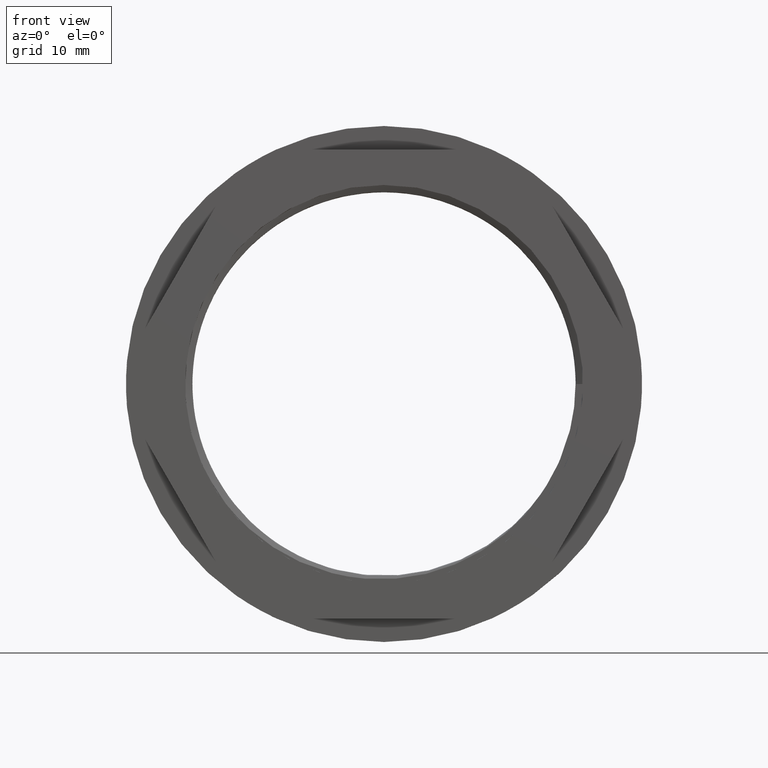
[diagram: clean part render]
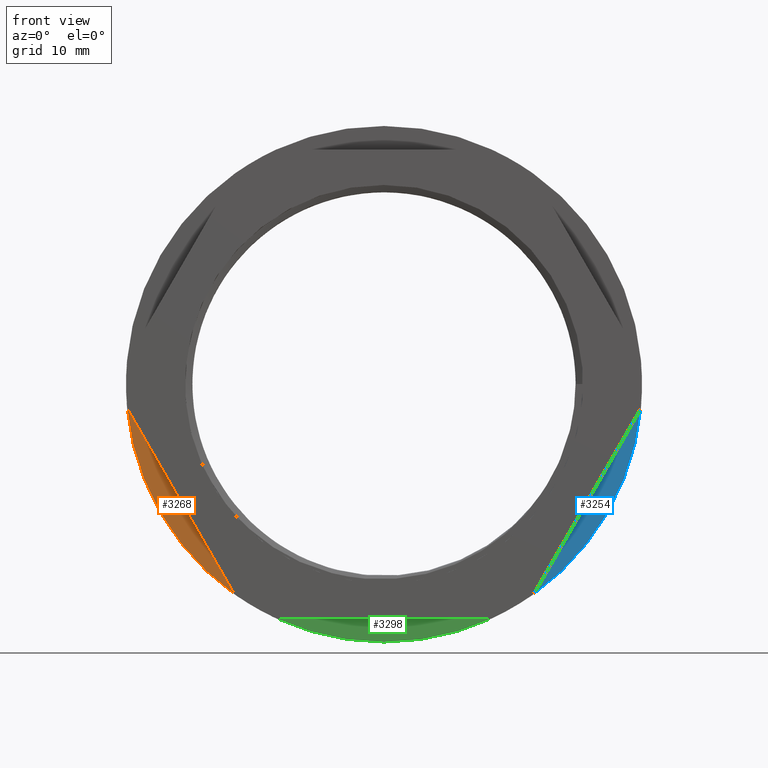
[diagram: same view with three faces highlighted in distinct colors, each labeled with its STEP entity id]
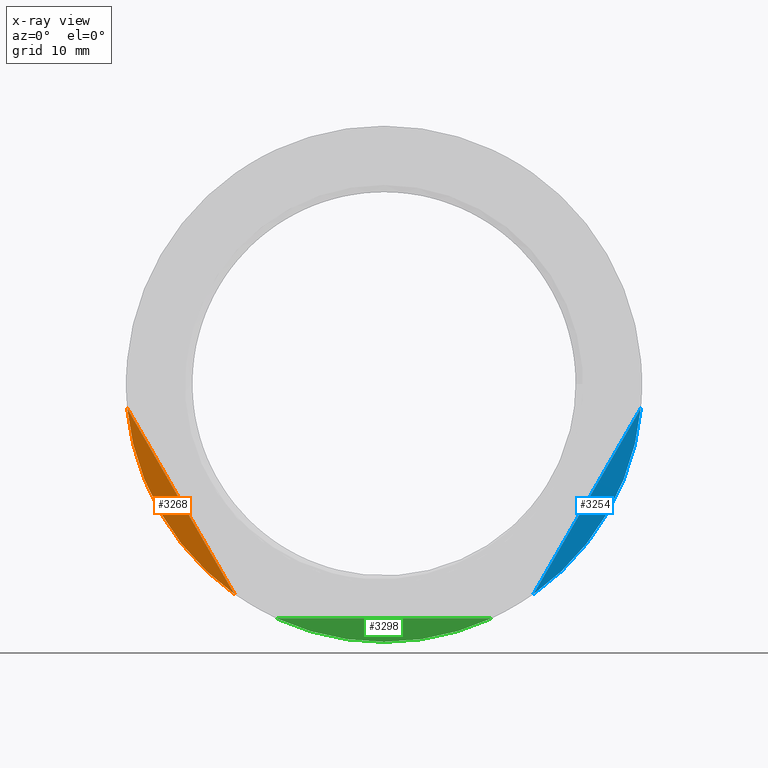
[diagram: x-ray of the same camera — body ghosted, the three highlighted faces saturated]
A machine part, front view with three faces highlighted in distinct colors.
The next image is the same camera in x-ray (body ghosted, the three faces saturated) — at least one of them is partly hidden behind the body in this view.
Their STEP definitions:

[orange] entity #3268 — the highlighted planar face has unit normal (0, 1, 0).
#281 = DIRECTION ( 'NONE',  ( 0.0000000000000000000, 0.0000000000000000000, 1.000000000000000000 ) ) ;
#282 = LINE ( 'NONE', #305, #3013 ) ;
#295 = DIRECTION ( 'NONE',  ( -0.4999999999999997200, -0.0000000000000000000, 0.8660254037844387100 ) ) ;
#299 = DIRECTION ( 'NONE',  ( 0.0000000000000000000, 1.000000000000000000, 0.0000000000000000000 ) ) ;
#300 = CARTESIAN_POINT ( 'NONE',  ( 0.0000000000000000000, 4.999999999999999100, 0.0000000000000000000 ) ) ;
#305 = CARTESIAN_POINT ( 'NONE',  ( -20.20725942163692300, 4.999999999999999100, -35.00000000000002800 ) ) ;
#1482 = ORIENTED_EDGE ( 'NONE', *, *, #3201, .F. ) ;
#1517 = ORIENTED_EDGE ( 'NONE', *, *, #3204, .T. ) ;
#1532 = CARTESIAN_POINT ( 'NONE',  ( -22.29138166628270300, 4.999999999999999100, -31.39019438308905700 ) ) ;
#1565 = CARTESIAN_POINT ( 'NONE',  ( -38.33039659862806300, 4.999999999999999100, -3.609805616910964200 ) ) ;
#1885 = EDGE_LOOP ( 'NONE', ( #1517, #1482 ) ) ;
#1923 = VERTEX_POINT ( 'NONE', #1532 ) ;
#1996 = VERTEX_POINT ( 'NONE', #1565 ) ;
#2420 = FACE_OUTER_BOUND ( 'NONE', #1885, .T. ) ;
#2898 = CARTESIAN_POINT ( 'NONE',  ( 0.0000000000000000000, 4.999999999999999100, 0.0000000000000000000 ) ) ;
#2921 = DIRECTION ( 'NONE',  ( 0.0000000000000000000, -0.0000000000000000000, 1.000000000000000000 ) ) ;
#2928 = PLANE ( 'NONE',  #3095 ) ;
#2935 = DIRECTION ( 'NONE',  ( 0.0000000000000000000, 1.000000000000000000, 0.0000000000000000000 ) ) ;
#3013 = VECTOR ( 'NONE', #295, 1000.000000000000100 ) ;
#3027 = CIRCLE ( 'NONE', #3035, 38.50000000000000000 ) ;
#3035 = AXIS2_PLACEMENT_3D ( 'NONE', #300, #299, #281 ) ;
#3095 = AXIS2_PLACEMENT_3D ( 'NONE', #2898, #2935, #2921 ) ;
#3201 = EDGE_CURVE ( 'NONE', #1923, #1996, #3027, .T. ) ;
#3204 = EDGE_CURVE ( 'NONE', #1923, #1996, #282, .T. ) ;
#3268 = ADVANCED_FACE ( 'NONE', ( #2420 ), #2928, .F. ) ;

[blue] entity #3254 — the highlighted planar face has unit normal (0, 1, 0).
#1473 = ORIENTED_EDGE ( 'NONE', *, *, #3185, .F. ) ;
#1475 = ORIENTED_EDGE ( 'NONE', *, *, #3186, .T. ) ;
#1570 = CARTESIAN_POINT ( 'NONE',  ( 38.33039659862807000, 4.999999999999999100, -3.609805616910914500 ) ) ;
#1589 = CARTESIAN_POINT ( 'NONE',  ( 22.29138166628264300, 4.999999999999999100, -31.39019438308909900 ) ) ;
#1748 = DIRECTION ( 'NONE',  ( 0.0000000000000000000, 1.000000000000000000, 0.0000000000000000000 ) ) ;
#1749 = DIRECTION ( 'NONE',  ( 0.0000000000000000000, 0.0000000000000000000, 1.000000000000000000 ) ) ;
#1750 = CARTESIAN_POINT ( 'NONE',  ( 40.41451884327381100, 4.999999999999999100, -1.387878450426935400E-014 ) ) ;
#1751 = CARTESIAN_POINT ( 'NONE',  ( 0.0000000000000000000, 4.999999999999999100, 0.0000000000000000000 ) ) ;
#1753 = DIRECTION ( 'NONE',  ( -0.5000000000000001100, -0.0000000000000000000, -0.8660254037844386000 ) ) ;
#1757 = LINE ( 'NONE', #1750, #3158 ) ;
#1913 = VERTEX_POINT ( 'NONE', #1570 ) ;
#1929 = VERTEX_POINT ( 'NONE', #1589 ) ;
#1938 = EDGE_LOOP ( 'NONE', ( #1475, #1473 ) ) ;
#2220 = PLANE ( 'NONE',  #3074 ) ;
#2232 = DIRECTION ( 'NONE',  ( 0.0000000000000000000, -0.0000000000000000000, 1.000000000000000000 ) ) ;
#2233 = DIRECTION ( 'NONE',  ( 0.0000000000000000000, 1.000000000000000000, 0.0000000000000000000 ) ) ;
#2257 = CARTESIAN_POINT ( 'NONE',  ( 0.0000000000000000000, 4.999999999999999100, 0.0000000000000000000 ) ) ;
#2963 = FACE_OUTER_BOUND ( 'NONE', #1938, .T. ) ;
#3074 = AXIS2_PLACEMENT_3D ( 'NONE', #2257, #2233, #2232 ) ;
#3155 = CIRCLE ( 'NONE', #3156, 38.50000000000000000 ) ;
#3156 = AXIS2_PLACEMENT_3D ( 'NONE', #1751, #1748, #1749 ) ;
#3158 = VECTOR ( 'NONE', #1753, 1000.000000000000000 ) ;
#3185 = EDGE_CURVE ( 'NONE', #1913, #1929, #3155, .T. ) ;
#3186 = EDGE_CURVE ( 'NONE', #1913, #1929, #1757, .T. ) ;
#3254 = ADVANCED_FACE ( 'NONE', ( #2963 ), #2220, .F. ) ;

[green] entity #3298 — the highlighted planar face has unit normal (0, 1, 0).
#1168 = CARTESIAN_POINT ( 'NONE',  ( 0.0000000000000000000, 4.999999999999999100, 0.0000000000000000000 ) ) ;
#1169 = DIRECTION ( 'NONE',  ( 0.0000000000000000000, 1.000000000000000000, 0.0000000000000000000 ) ) ;
#1171 = DIRECTION ( 'NONE',  ( 0.0000000000000000000, -0.0000000000000000000, 1.000000000000000000 ) ) ;
#1201 = PLANE ( 'NONE',  #3103 ) ;
#1213 = FACE_OUTER_BOUND ( 'NONE', #1894, .T. ) ;
#1469 = ORIENTED_EDGE ( 'NONE', *, *, #3181, .F. ) ;
#1481 = ORIENTED_EDGE ( 'NONE', *, *, #3178, .F. ) ;
#1516 = ORIENTED_EDGE ( 'NONE', *, *, #3187, .T. ) ;
#1533 = CARTESIAN_POINT ( 'NONE',  ( 16.03901493234537800, 4.999999999999999100, -35.00000000000002800 ) ) ;
#1559 = CARTESIAN_POINT ( 'NONE',  ( 4.714890176717309500E-015, 4.999999999999999100, -38.50000000000000000 ) ) ;
#1583 = CARTESIAN_POINT ( 'NONE',  ( -16.03901493234537400, 4.999999999999999100, -35.00000000000002800 ) ) ;
#1715 = CARTESIAN_POINT ( 'NONE',  ( 0.0000000000000000000, 4.999999999999999100, 0.0000000000000000000 ) ) ;
#1716 = DIRECTION ( 'NONE',  ( 0.0000000000000000000, 1.000000000000000000, 0.0000000000000000000 ) ) ;
#1717 = DIRECTION ( 'NONE',  ( 0.0000000000000000000, 0.0000000000000000000, 1.000000000000000000 ) ) ;
#1742 = DIRECTION ( 'NONE',  ( 0.0000000000000000000, 0.0000000000000000000, 1.000000000000000000 ) ) ;
#1743 = CARTESIAN_POINT ( 'NONE',  ( 0.0000000000000000000, 4.999999999999999100, 0.0000000000000000000 ) ) ;
#1744 = DIRECTION ( 'NONE',  ( 0.0000000000000000000, 1.000000000000000000, 0.0000000000000000000 ) ) ;
#1752 = LINE ( 'NONE', #1754, #3047 ) ;
#1754 = CARTESIAN_POINT ( 'NONE',  ( 20.20725942163689500, 4.999999999999999100, -35.00000000000002800 ) ) ;
#1760 = DIRECTION ( 'NONE',  ( -1.000000000000000000, -0.0000000000000000000, 0.0000000000000000000 ) ) ;
#1888 = VERTEX_POINT ( 'NONE', #1583 ) ;
#1894 = EDGE_LOOP ( 'NONE', ( #1516, #1481, #1469 ) ) ;
#1912 = VERTEX_POINT ( 'NONE', #1559 ) ;
#1917 = VERTEX_POINT ( 'NONE', #1533 ) ;
#3047 = VECTOR ( 'NONE', #1760, 1000.000000000000000 ) ;
#3103 = AXIS2_PLACEMENT_3D ( 'NONE', #1168, #1169, #1171 ) ;
#3133 = CIRCLE ( 'NONE', #3154, 38.50000000000000000 ) ;
#3148 = CIRCLE ( 'NONE', #3149, 38.50000000000000000 ) ;
#3149 = AXIS2_PLACEMENT_3D ( 'NONE', #1743, #1744, #1742 ) ;
#3154 = AXIS2_PLACEMENT_3D ( 'NONE', #1715, #1716, #1717 ) ;
#3178 = EDGE_CURVE ( 'NONE', #1912, #1888, #3133, .T. ) ;
#3181 = EDGE_CURVE ( 'NONE', #1917, #1912, #3148, .T. ) ;
#3187 = EDGE_CURVE ( 'NONE', #1917, #1888, #1752, .T. ) ;
#3298 = ADVANCED_FACE ( 'NONE', ( #1213 ), #1201, .F. ) ;